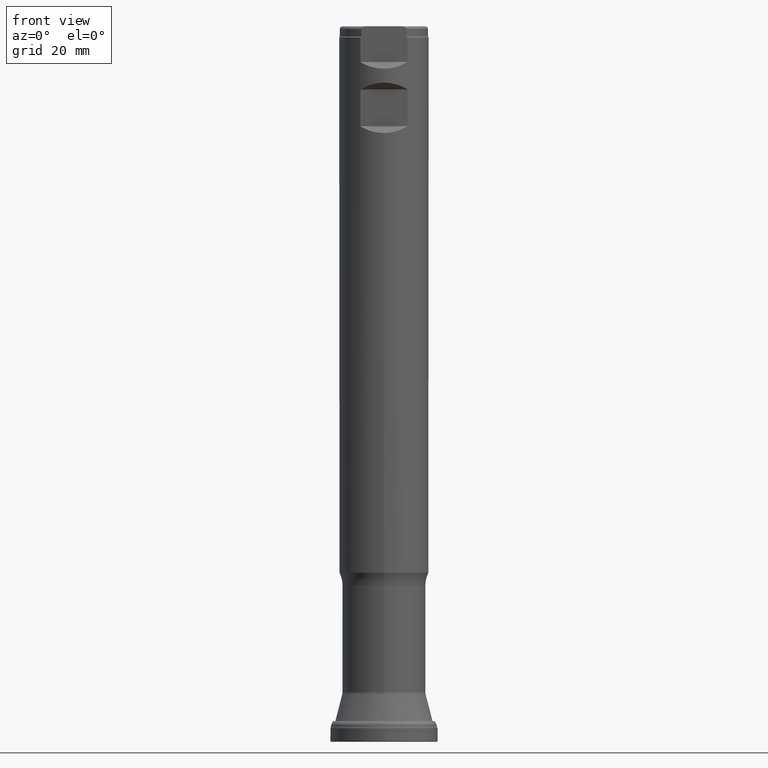
[diagram: clean part render]
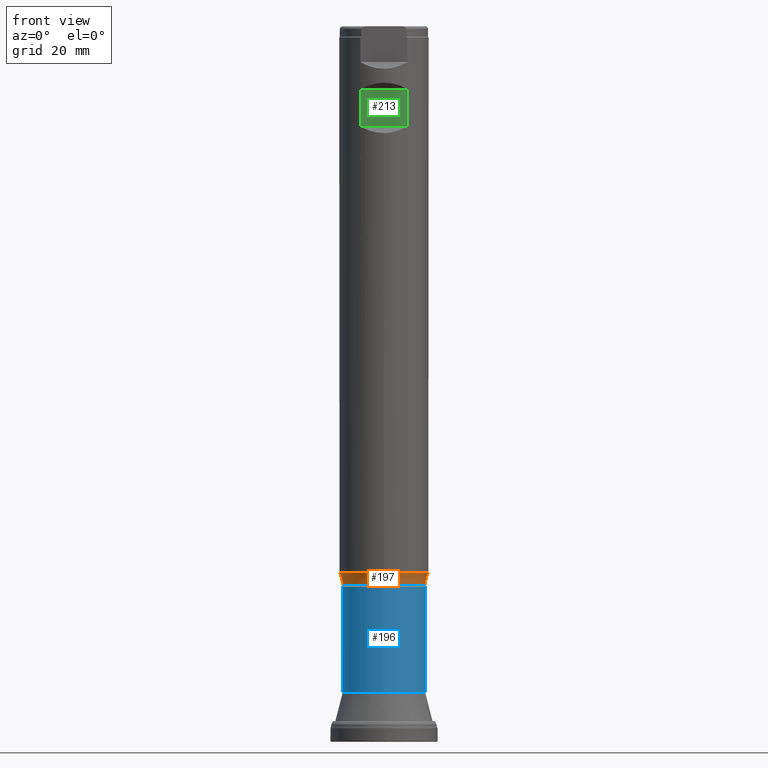
[diagram: same view with three faces highlighted in distinct colors, each labeled with its STEP entity id]
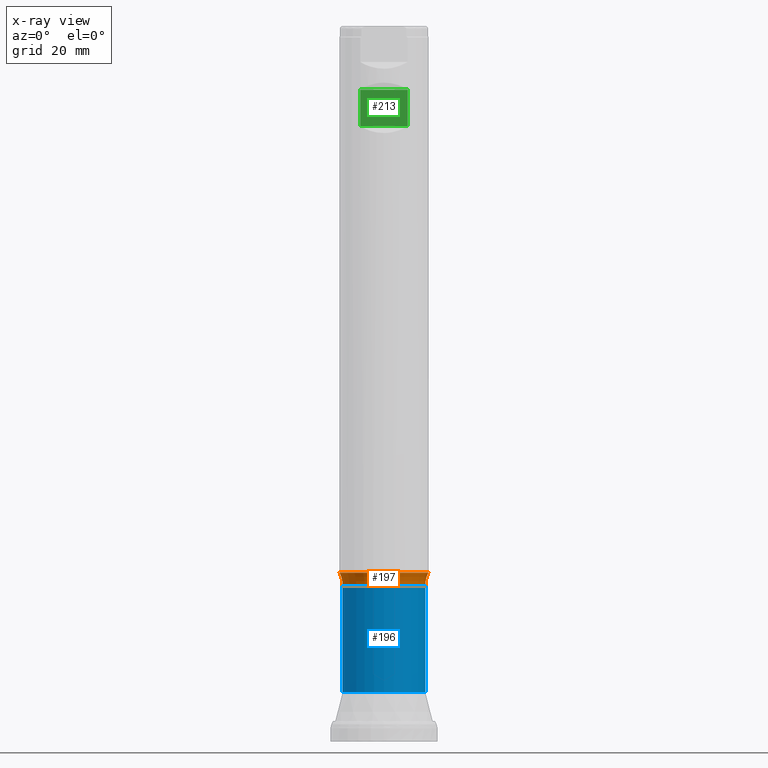
[diagram: x-ray of the same camera — body ghosted, the three highlighted faces saturated]
A machine part, front view with three faces highlighted in distinct colors.
The next image is the same camera in x-ray (body ghosted, the three faces saturated) — at least one of them is partly hidden behind the body in this view.
Their STEP definitions:

[orange] entity #197 — the highlighted toroidal blend (fillet) surface has major radius 24.8 mm and minor (blend) radius 10 mm.
#155=TOROIDAL_SURFACE('',#840,24.8,10.);
#197=ADVANCED_FACE('',(#303,#304),#155,.F.);
#246=CIRCLE('',#813,15.875);
#261=CIRCLE('',#838,14.8);
#303=FACE_BOUND('',#387,.T.);
#304=FACE_BOUND('',#388,.T.);
#387=EDGE_LOOP('',(#540));
#388=EDGE_LOOP('',(#541));
#540=ORIENTED_EDGE('',*,*,#731,.F.);
#541=ORIENTED_EDGE('',*,*,#704,.F.);
#644=VERTEX_POINT('',#1346);
#667=VERTEX_POINT('',#1449);
#704=EDGE_CURVE('',#644,#644,#246,.T.);
#731=EDGE_CURVE('',#667,#667,#261,.T.);
#813=AXIS2_PLACEMENT_3D('',#1345,#894,#895);
#838=AXIS2_PLACEMENT_3D('',#1448,#949,#950);
#840=AXIS2_PLACEMENT_3D('',#1451,#953,#954);
#894=DIRECTION('',(0.,1.17145536458252E-15,1.));
#895=DIRECTION('',(0.,-1.,1.31128703695885E-15));
#949=DIRECTION('',(0.,-1.17145536458252E-15,-1.));
#950=DIRECTION('',(0.,-1.,9.37688365392869E-16));
#953=DIRECTION('',(0.,1.17145536458252E-15,1.));
#954=DIRECTION('',(0.,-1.,1.19636101791504E-15));
#1345=CARTESIAN_POINT('',(0.,7.02812303070556E-14,59.9948));
#1346=CARTESIAN_POINT('',(0.,-15.8749999999999,59.9948));
#1448=CARTESIAN_POINT('',(0.,6.49974114344545E-14,55.4843260781155));
#1449=CARTESIAN_POINT('',(0.,-14.7999999999999,55.4843260781155));
#1451=CARTESIAN_POINT('',(0.,6.49974114344545E-14,55.4843260781155));

[blue] entity #196 — the highlighted cylindrical surface (bore or boss wall) has radius 14.8 mm, axis along (0, 0, 1).
#196=ADVANCED_FACE('',(#301,#302),#240,.T.);
#240=CYLINDRICAL_SURFACE('',#839,14.8);
#260=CIRCLE('',#837,14.8);
#261=CIRCLE('',#838,14.8);
#301=FACE_BOUND('',#385,.T.);
#302=FACE_BOUND('',#386,.T.);
#385=EDGE_LOOP('',(#538));
#386=EDGE_LOOP('',(#539));
#538=ORIENTED_EDGE('',*,*,#730,.T.);
#539=ORIENTED_EDGE('',*,*,#731,.T.);
#666=VERTEX_POINT('',#1447);
#667=VERTEX_POINT('',#1449);
#730=EDGE_CURVE('',#666,#666,#260,.T.);
#731=EDGE_CURVE('',#667,#667,#261,.T.);
#837=AXIS2_PLACEMENT_3D('',#1446,#947,#948);
#838=AXIS2_PLACEMENT_3D('',#1448,#949,#950);
#839=AXIS2_PLACEMENT_3D('',#1450,#951,#952);
#947=DIRECTION('',(0.,1.17145536458252E-15,1.));
#948=DIRECTION('',(0.,-1.,1.17211045674109E-15));
#949=DIRECTION('',(0.,-1.17145536458252E-15,-1.));
#950=DIRECTION('',(0.,-1.,9.37688365392869E-16));
#951=DIRECTION('',(0.,1.17145536458252E-15,1.));
#952=DIRECTION('',(0.,-1.,1.17145536458252E-15));
#1446=CARTESIAN_POINT('',(0.,2.07187410793546E-14,17.6863256644338));
#1447=CARTESIAN_POINT('',(0.,-14.8,17.6863256644338));
#1448=CARTESIAN_POINT('',(0.,6.49974114344545E-14,55.4843260781155));
#1449=CARTESIAN_POINT('',(0.,-14.7999999999999,55.4843260781155));
#1450=CARTESIAN_POINT('',(0.,0.,0.));

[green] entity #213 — the highlighted planar face has unit normal (0, -1, 0).
#167=PLANE('',#861);
#183=FACE_OUTER_BOUND('',#413,.T.);
#213=ADVANCED_FACE('',(#183),#167,.T.);
#413=EDGE_LOOP('',(#580,#581,#582,#583));
#459=LINE('',#1312,#478);
#460=LINE('',#1344,#479);
#469=LINE('',#1482,#488);
#470=LINE('',#1483,#489);
#478=VECTOR('',#890,1.);
#479=VECTOR('',#893,1.);
#488=VECTOR('',#998,1.);
#489=VECTOR('',#999,1.);
#580=ORIENTED_EDGE('',*,*,#740,.T.);
#581=ORIENTED_EDGE('',*,*,#703,.F.);
#582=ORIENTED_EDGE('',*,*,#741,.T.);
#583=ORIENTED_EDGE('',*,*,#699,.F.);
#637=VERTEX_POINT('',#1295);
#639=VERTEX_POINT('',#1311);
#640=VERTEX_POINT('',#1313);
#643=VERTEX_POINT('',#1343);
#699=EDGE_CURVE('',#639,#640,#459,.T.);
#703=EDGE_CURVE('',#643,#637,#460,.T.);
#740=EDGE_CURVE('',#639,#637,#469,.T.);
#741=EDGE_CURVE('',#643,#640,#470,.T.);
#861=AXIS2_PLACEMENT_3D('',#1484,#1000,#1001);
#890=DIRECTION('',(0.,-1.17145536458252E-15,-1.));
#893=DIRECTION('',(0.,1.17145536458252E-15,1.));
#998=DIRECTION('',(-1.,1.37230767120917E-30,1.17145536458252E-15));
#999=DIRECTION('',(1.,-1.37230767120917E-30,-1.17145536458252E-15));
#1000=DIRECTION('',(0.,-1.,1.17145536458252E-15));
#1001=DIRECTION('',(1.17267306976032E-15,1.17093834628434E-15,1.));
#1295=CARTESIAN_POINT('',(-8.37291264972948,-13.4873999999997,231.457060931288));
#1311=CARTESIAN_POINT('',(8.37291264972948,-13.4873999999997,231.457060931288));
#1312=CARTESIAN_POINT('',(8.37291264972948,-13.4874,1.57998870842703E-14));
#1313=CARTESIAN_POINT('',(8.37291264972948,-13.4873999999997,218.599189068712));
#1343=CARTESIAN_POINT('',(-8.37291264972948,-13.4873999999997,218.599189068712));
#1344=CARTESIAN_POINT('',(-8.37291264972948,-13.4874,1.57998870842703E-14));
#1482=CARTESIAN_POINT('',(-17.5,-13.4873999999997,231.457060931288));
#1483=CARTESIAN_POINT('',(-17.5,-13.4873999999997,218.599189068712));
#1484=CARTESIAN_POINT('',(-17.5,-13.4873999999997,231.581325));